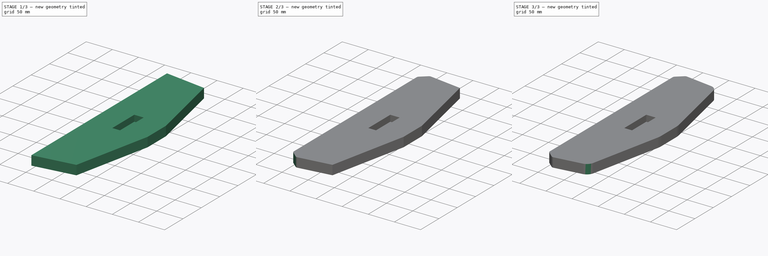
[diagram: build sequence overview — one tinted view per stage of 3, left to right]
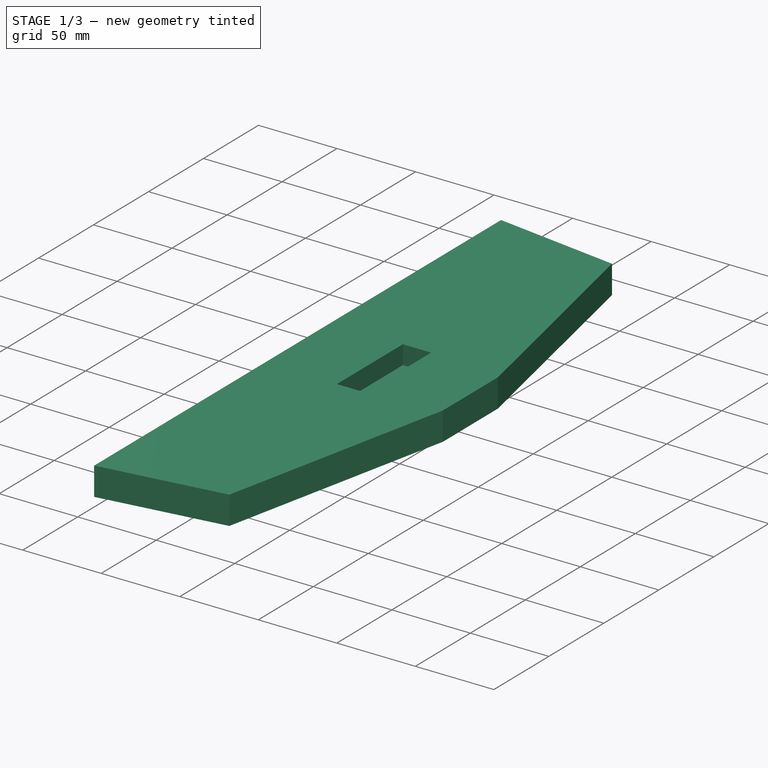
[diagram: stage 1 of 3 — iso view after this stage's code; geometry added in this stage tinted green]
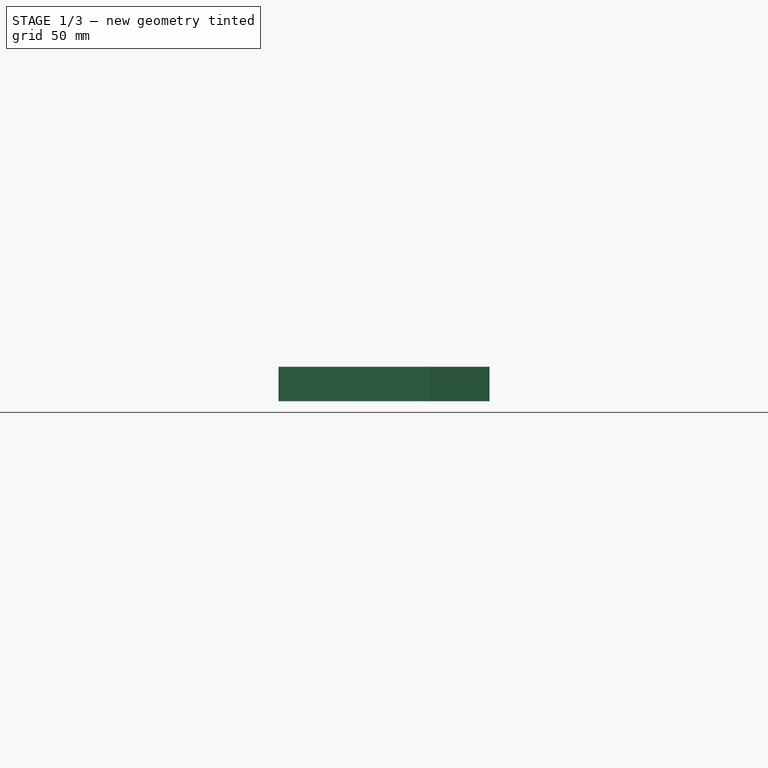
[diagram: stage 1 of 3 — front view after this stage's code; geometry added in this stage tinted green]
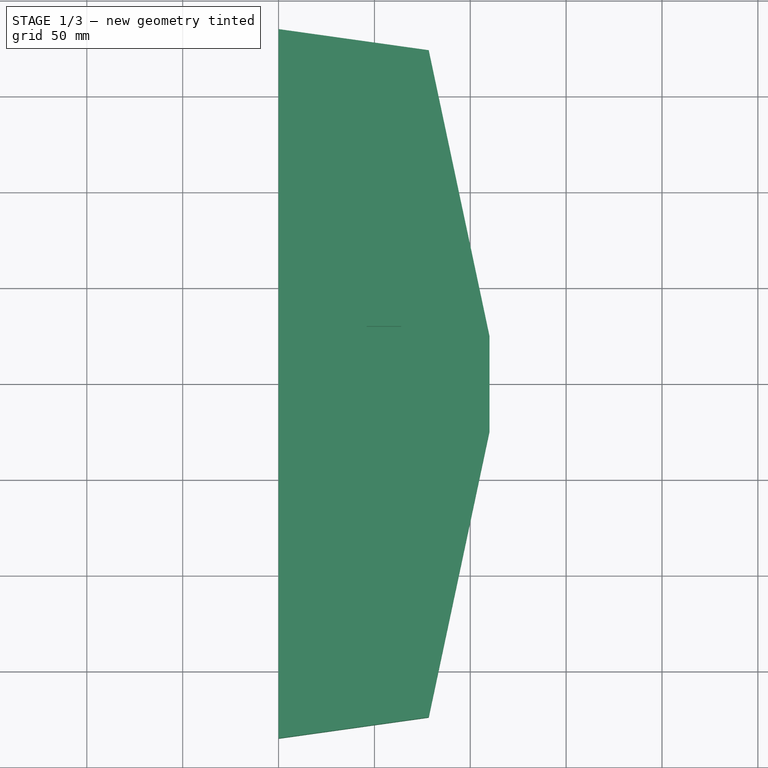
[diagram: stage 1 of 3 — top view after this stage's code; geometry added in this stage tinted green]
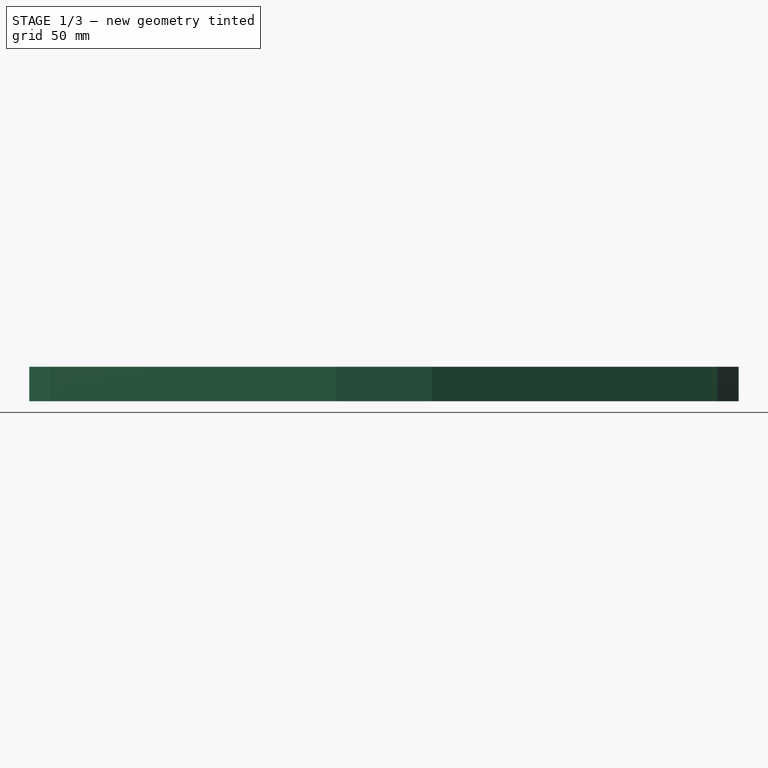
[diagram: stage 1 of 3 — right view after this stage's code; geometry added in this stage tinted green]
FCSTD DOCUMENT  (FreeCAD 0.15R4671 (Git))
Label: SidePart
License: All rights reserved
LicenseURL: http://en.wikipedia.org/wiki/All_rights_reserved
objects: PartDesign::Fillet×3, Sketcher::SketchObject×2, Image::ImagePlane×1, PartDesign::Pad×1, PartDesign::Pocket×1, PartDesign::Chamfer×1
note: 10 computed .brp shape members not serialized (recipe doc carries the construction recipe); baked Part::Feature solids carry a one-line shape summary decoded from their .brp

FEATURE [Image::ImagePlane] ImagePlane
  Placement = pos=(0,0,-1) rot=(0,0,1;0rad)
  XSize = 960
  YSize = 687
FEATURE [Sketcher::SketchObject] Sketch
  sketch-geometry (6):
    g0: LineSegment StartX=0 StartY=185 StartZ=0 EndX=0 EndY=-185 EndZ=0
    g1: LineSegment StartX=0 StartY=-185 StartZ=0 EndX=78.3309 EndY=-173.991 EndZ=0
    g2: LineSegment StartX=78.3309 StartY=-173.991 StartZ=0 EndX=110 EndY=-25 EndZ=0
    g3: LineSegment StartX=110 StartY=-25 StartZ=0 EndX=110 EndY=25 EndZ=0
    g4: LineSegment StartX=110 StartY=25 StartZ=0 EndX=78.3309 EndY=173.991 EndZ=0
    g5: LineSegment StartX=78.3309 StartY=173.991 StartZ=0 EndX=0 EndY=185 EndZ=0
  constraints (17):
    c: Coincident(g0,g1)
    c: Coincident(g1,g2)
    c: Coincident(g2,g3)
    c: Coincident(g3,g4)
    c: Coincident(g4,g5)
    c: Coincident(g5,g0)
    c: Vertical(g0)
    c: Distance(g0) = 370  'Length'
    c: Vertical(g3)
    c: DistanceX(g3,g0) = -110  'Width'
    c: Distance(g3) = 50
    c: DistanceY(g3,g0) = 160
    c: Angle(g0,g5) = 1.43117
    c: Angle(g1,g0) = 1.43117
    c: Angle(g5,g4) = 1.91986
    c: Angle(g2,g1) = 1.91986
    c: Symmetric(g0,g0,g-1)
FEATURE [PartDesign::Pad] Pad
  Length = 18
  Length2 = 100
  Sketch = -> Sketch
  Type = 0
FEATURE [Sketcher::SketchObject] Sketch001
  Placement = pos=(0,0,18) rot=(0,0,1;0rad)
  Support = -> Pad [Face8]
  sketch-geometry (4):
    g0: LineSegment StartX=46 StartY=30 StartZ=0 EndX=64 EndY=30 EndZ=0
    g1: LineSegment StartX=64 StartY=30 StartZ=0 EndX=64 EndY=-30 EndZ=0
    g2: LineSegment StartX=64 StartY=-30 StartZ=0 EndX=46 EndY=-30 EndZ=0
    g3: LineSegment StartX=46 StartY=-30 StartZ=0 EndX=46 EndY=30 EndZ=0
  constraints (12):
    c: Coincident(g0,g1)
    c: Coincident(g1,g2)
    c: Coincident(g2,g3)
    c: Coincident(g3,g0)
    c: Horizontal(g0)
    c: Horizontal(g2)
    c: Vertical(g1)
    c: Vertical(g3)
    c: Distance(g0) = 18  'Thickness'
    c: Distance(g3) = 60
    c: DistanceX(g-1,g2) = 46
    c: Symmetric(g0,g1,g-1)
FEATURE [PartDesign::Pocket] Pocket
  Length = 12
  Sketch = -> Sketch001
  Type = 0
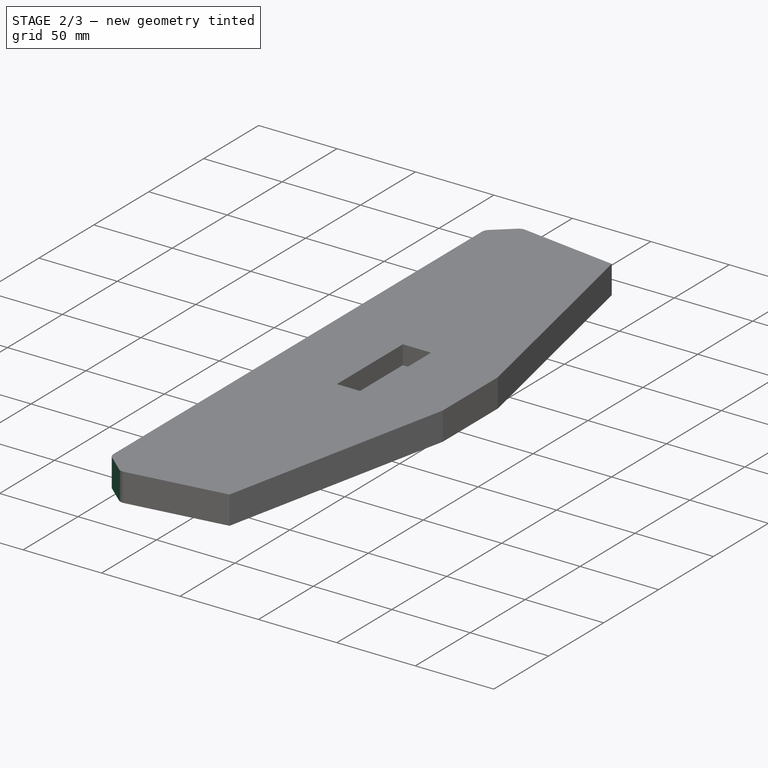
[diagram: stage 2 of 3 — iso view after this stage's code; geometry added in this stage tinted green]
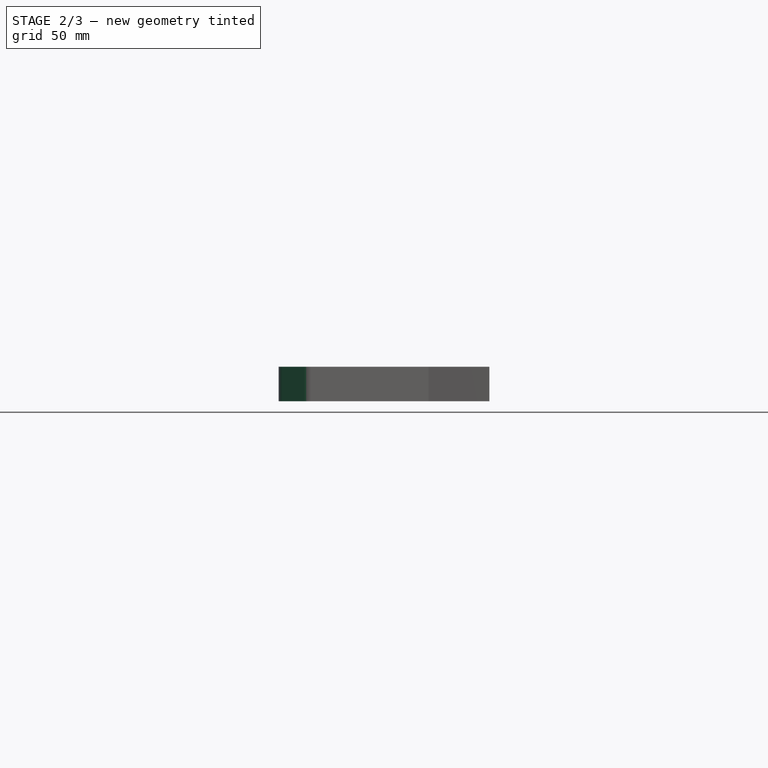
[diagram: stage 2 of 3 — front view after this stage's code; geometry added in this stage tinted green]
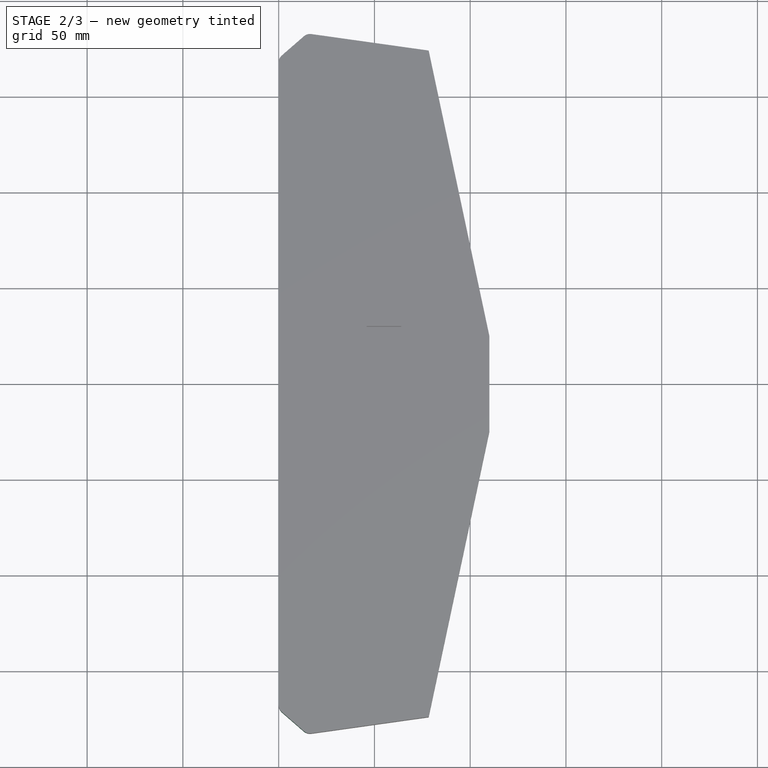
[diagram: stage 2 of 3 — top view after this stage's code; geometry added in this stage tinted green]
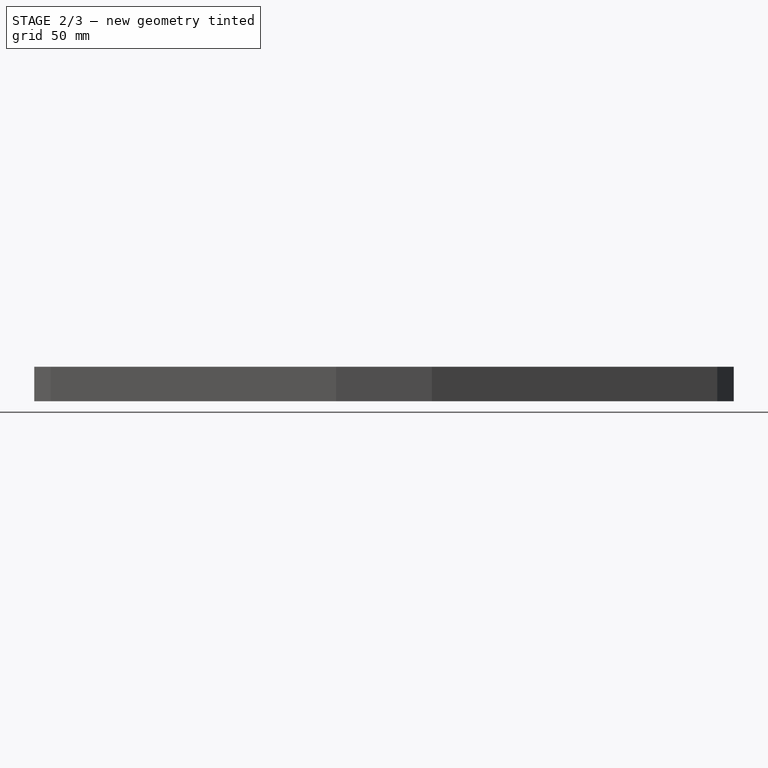
[diagram: stage 2 of 3 — right view after this stage's code; geometry added in this stage tinted green]
FEATURE [PartDesign::Chamfer] Chamfer
  Base = -> Pocket [Edge2,Edge1]
  Size = 15
FEATURE [PartDesign::Fillet] Fillet
  Base = -> Chamfer [Edge12,Edge2,Edge3,Edge14]
  Radius = 5
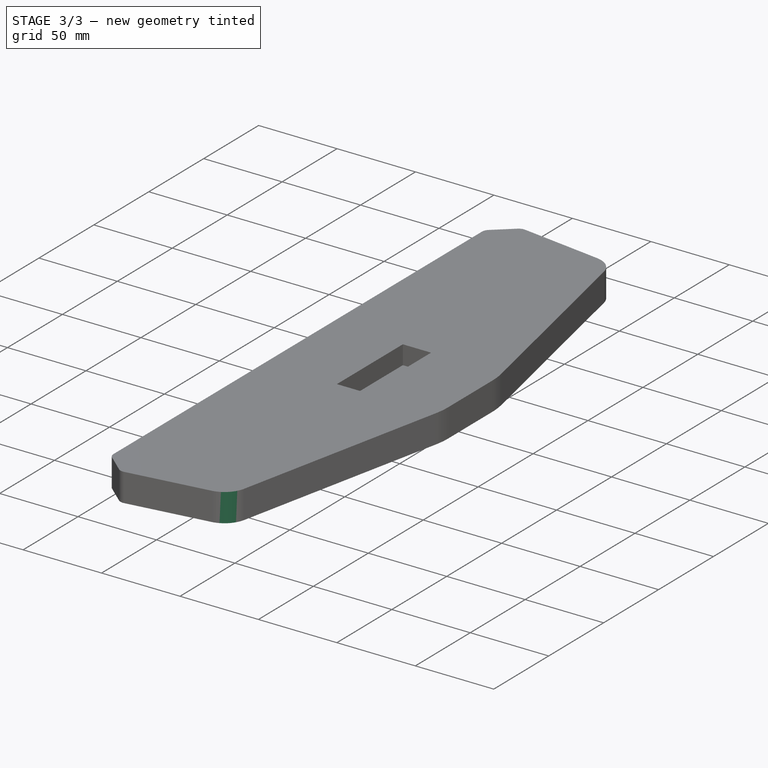
[diagram: stage 3 of 3 — iso view after this stage's code; geometry added in this stage tinted green]
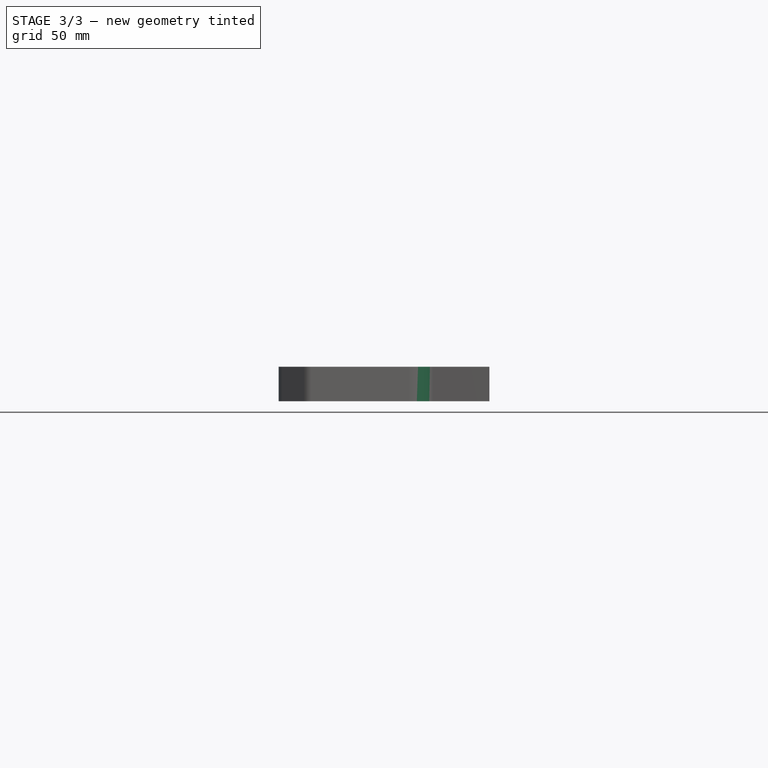
[diagram: stage 3 of 3 — front view after this stage's code; geometry added in this stage tinted green]
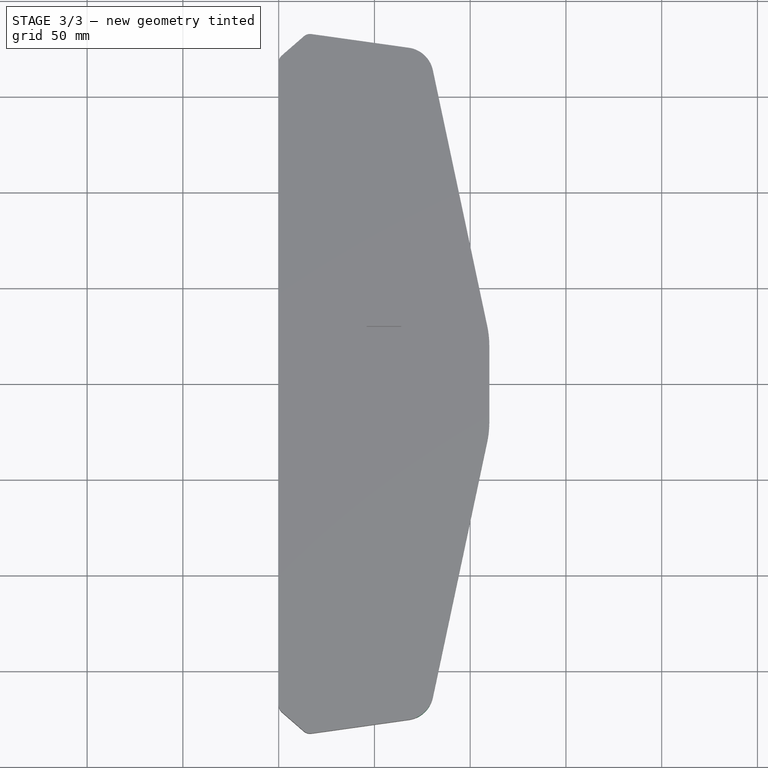
[diagram: stage 3 of 3 — top view after this stage's code; geometry added in this stage tinted green]
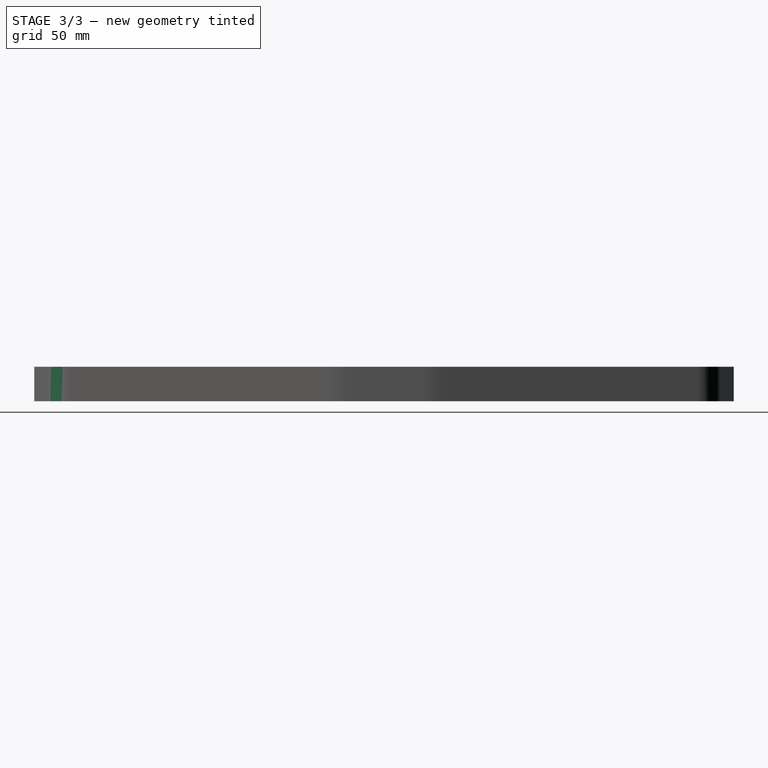
[diagram: stage 3 of 3 — right view after this stage's code; geometry added in this stage tinted green]
FEATURE [PartDesign::Fillet] Fillet001
  Base = -> Fillet [Edge38,Edge37]
  Radius = 15
FEATURE [PartDesign::Fillet] Fillet002
  Base = -> Fillet001 [Edge26,Edge22]
  Radius = 50
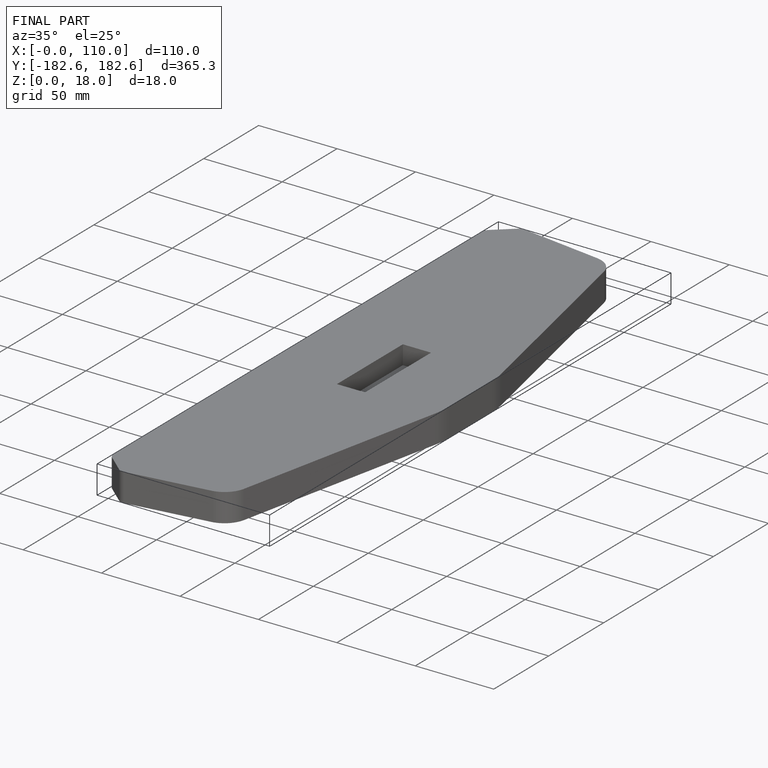
[diagram: finished part — iso view with bounding-box wireframe]
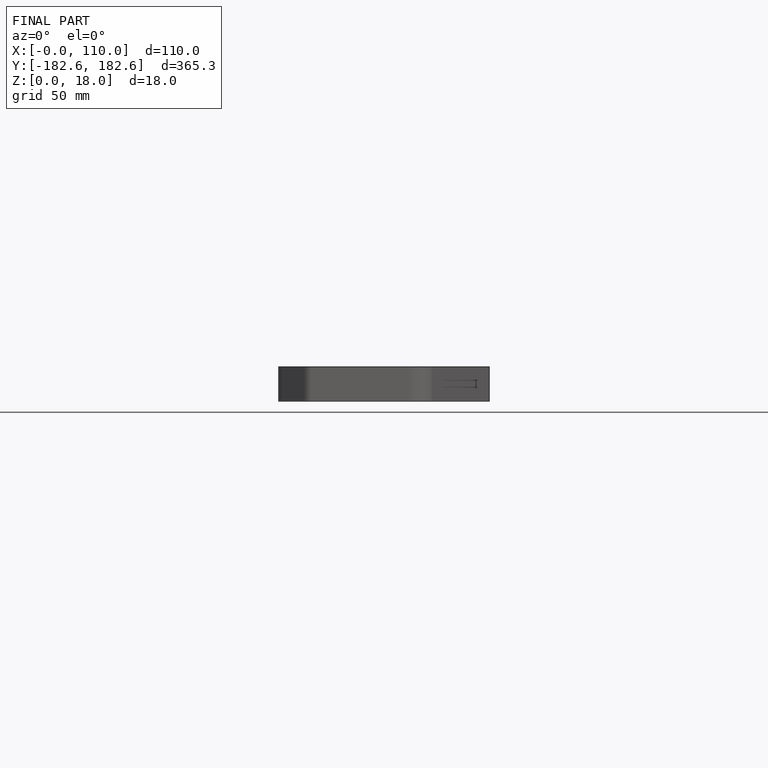
[diagram: finished part — front view with bounding-box wireframe]
